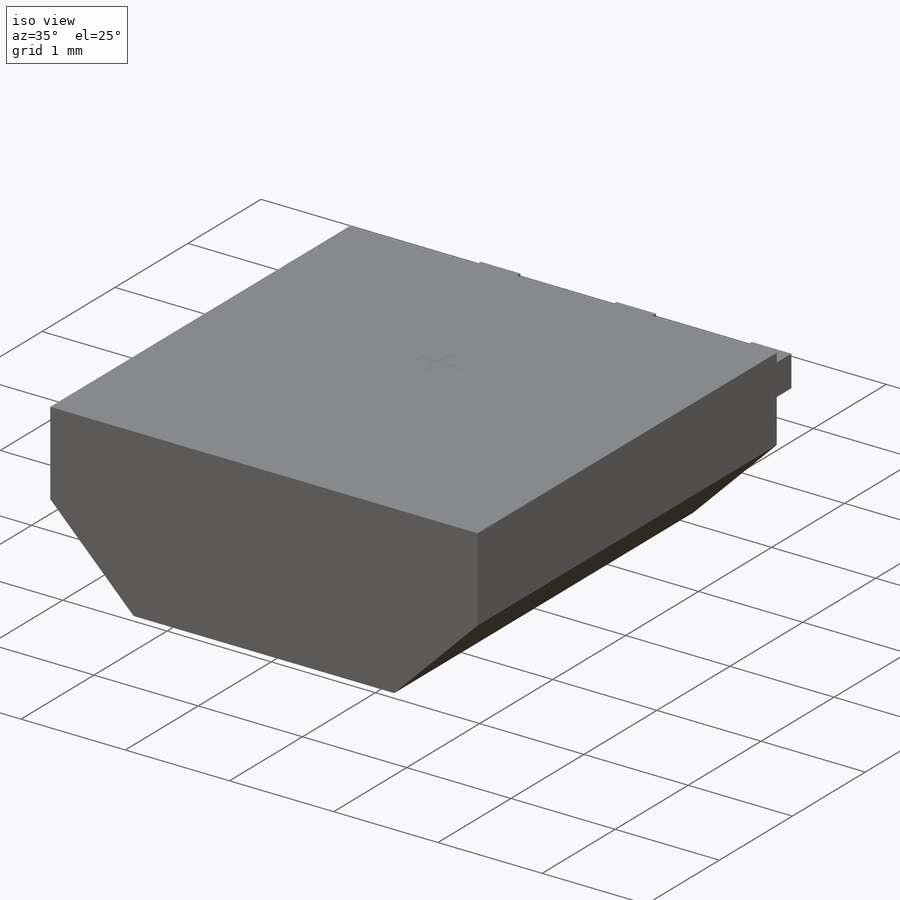
[diagram: iso view]
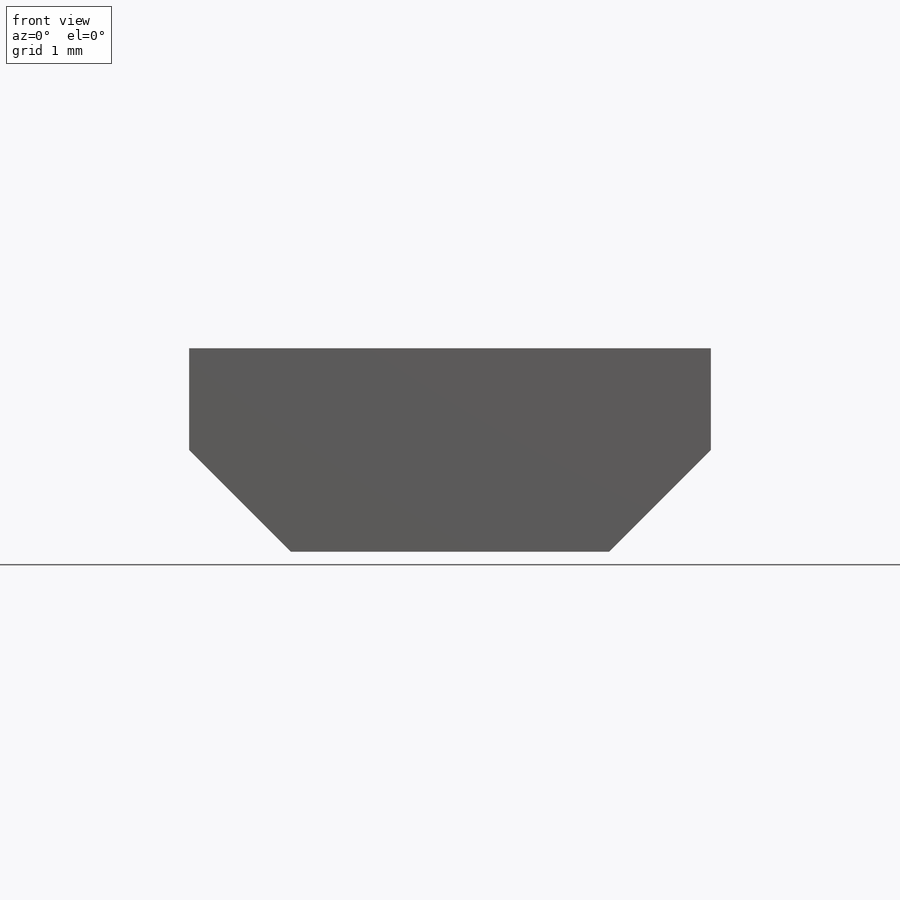
[diagram: front view]
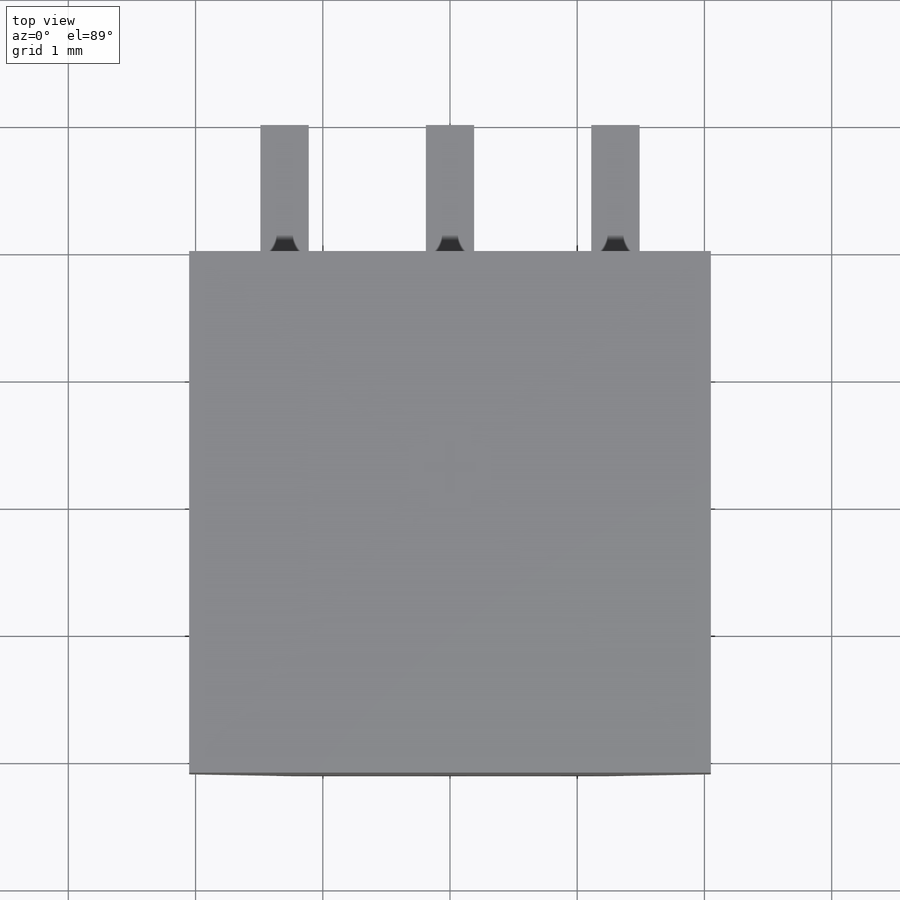
[diagram: top view]
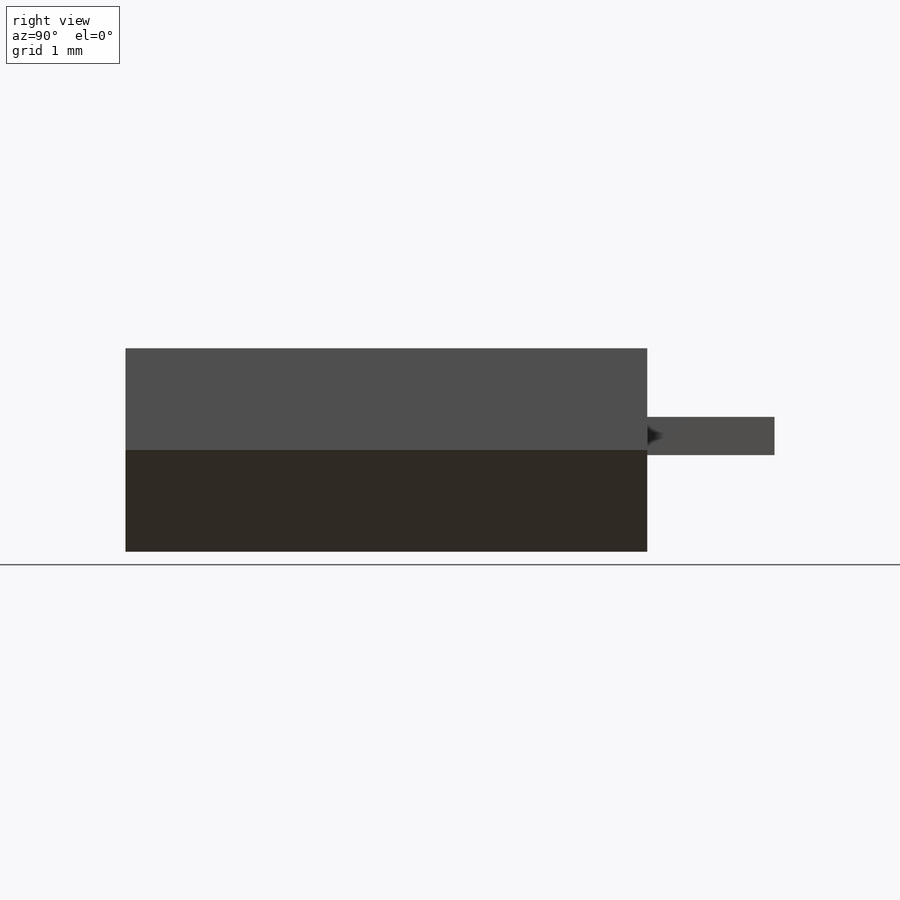
[diagram: right view]
SOLIDWORKS PART (.sldprt)
format: sldprt  version: not decoded by parser v0  size: 205,312 bytes
history: native  units: mm
features: sketch x6, plane x5, extrude x4, cut_extrude x2, material x1 (+8 scaffold rows collapsed)
feature tree (26):
  scaffold x8  (default folders/planes/origin — collapsed)
  material  "Matériau <non spécifié>"
  plane  "Plan de face"
  plane  "Plan de dessus"
  plane  "Plan de droite"
  plane  "Plan1"  Offset=4.1mm
  sketch  "Esquisse1"
  extrude  "Boitier"  Depth=4.1mm
  sketch  "Esquisse2"
  extrude  "Pin2"  Depth=1mm
  sketch  "Esquisse3"
  extrude  "Pin3"  Depth=1mm
  sketch  "Esquisse4"
  extrude  "Pin1"  Depth=1mm
  plane  "Plan2"  Offset=2.05mm
  sketch  "Esquisse5"  dims[D2=0.4mm D1=1.7mm]
  cut_extrude  "Enlèv. mat.-Extru.1"  Depth=0.001mm
  sketch  "Esquisse6"  dims[c1.D1=1.7mm c1.D2=~0.210657mm c1.D3=0.3mm c2.D3=90.0deg c3.D3=~1.267613mm c3.D4=~0.258099mm c3.D6=90.0deg c3.D5=~0.950009mm]
  cut_extrude  "Enlèv. mat.-Extru.4"  Depth=0.001mm
decode coverage: 8 of 12 modeling features carry decoded parameters
note: ~ marks probable driven/reference dimensions
note: suppression state not decoded; provenance and decode notes live in map.json
